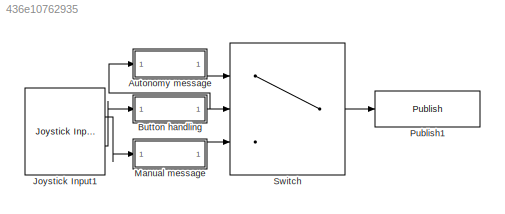
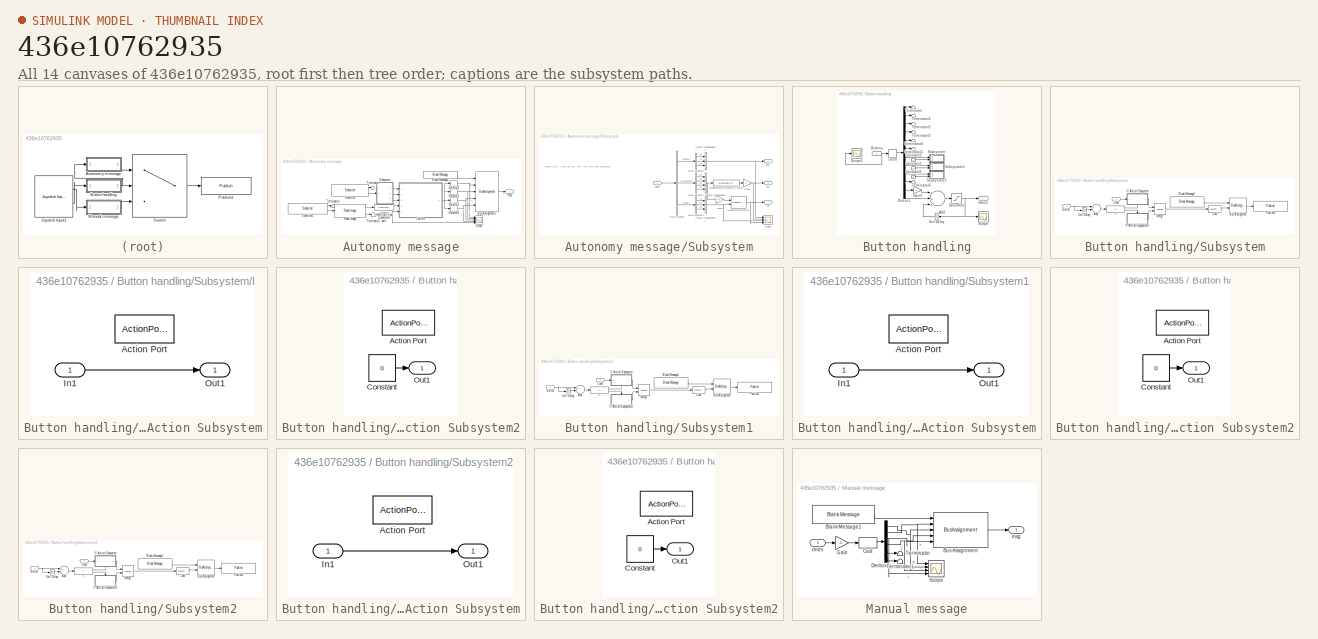
[diagram: thumbnail index - all 14 canvases of the model, root first then tree order]
MODEL slx_436e10762935
KIND model
CONFIG AbsTol = 10
CONFIG EnableMultiTasking = off
CONFIG FixedStep = 0.2
CONFIG MaxStep = 0.5
CONFIG MinStep = 0.3
CONFIG RelTol = 10
CONFIG SampleTimeConstraint = Unconstrained
CONFIG Solver = FixedStepAuto
CONFIG SolverName = FixedStepAuto
CONFIG StartTime = 0.0
CONFIG StopTime = 100
WORKSPACE source: MAT-file member
WORKSPACE SL_ROS_VariableLengthArrays_MaxSizes: struct (value not decoded)
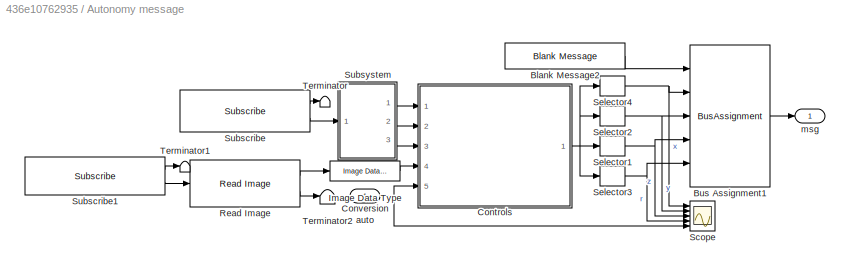
BLOCK [SubSystem] Autonomy message
  Ports = [1, 1]
  RequestExecContextInheritance = off
BLOCK [Reference] Autonomy message/Blank Message2  REF=robotlib/Blank Message
  Ports = [0, 1]
  SourceBlock = robotlib/Blank Message
  SourceLibraryInfo = This block requires Robotics System Toolbox
  SourceProductBaseCode = RO
  SourceProductName = Robotics System Toolbox
  SourceType = ROS Blank Message
BLOCK [BusAssignment] Autonomy message/Bus Assignment1
  AssignedSignals = Linear.X,Linear.Y,Linear.Z,Angular.Z
  Ports = [5, 1]
BLOCK [ModelReference] Autonomy message/Controls
  ModelNameDialog = GNC_exp.slx
  ModelReferenceVersion = 1.454
  Ports = [5, 1]
BLOCK [Reference] Autonomy message/Image Data Type Conversion  REF=visionconversions/Image Data Type
Conversion
  Ports = [1, 1]
  SourceBlock = visionconversions/Image Data Type\nConversion
  SourceProductBaseCode = VP
  SourceProductName = Computer Vision System Toolbox
  SourceType = Image Data Type Conversion
BLOCK [Reference] Autonomy message/Read Image  REF=robotlib/Read Image
  Ports = [1, 2]
  SourceBlock = robotlib/Read Image
  SourceLibraryInfo = This block requires Robotics System Toolbox
  SourceProductBaseCode = RO
  SourceProductName = Robotics System Toolbox
  SourceType = robotics.slros.internal.block.ReadImage
BLOCK [Scope] Autonomy message/Scope
  Floating = off
  NumInputPorts = 5
  Ports = [5]
  ScopeSpecificationString = Simulink.scopes.TimeScopeBlockCfg('CurrentConfiguration', extmgr.ConfigurationSet(extmgr.Configuration('Core','General UI',true),extmgr.Configuration('Core','Source UI',true),extmgr.Configuration('Sources','WiredSimulink',true,'DataLoggingVariableName','ScopeData1'),extmgr.Configuration('Visuals','Time Domain',true,'SerializedDisplays',{struct('MinYLimReal','-0.4633','MaxYLimReal','0.30885','YLabe...<+1590ch>
BLOCK [Selector] Autonomy message/Selector1
  IndexOptions = Index vector (dialog)
  Indices = 3
  InputPortWidth = 4
  OutputSizes = 1
  Ports = [1, 1]
BLOCK [Selector] Autonomy message/Selector2
  IndexOptions = Index vector (dialog)
  Indices = 2
  InputPortWidth = 4
  OutputSizes = 1
  Ports = [1, 1]
BLOCK [Selector] Autonomy message/Selector3
  IndexOptions = Index vector (dialog)
  Indices = 4
  InputPortWidth = 4
  OutputSizes = 1
  Ports = [1, 1]
BLOCK [Selector] Autonomy message/Selector4
  IndexOptions = Index vector (dialog)
  Indices = 1
  InputPortWidth = 4
  OutputSizes = 1
  Ports = [1, 1]
BLOCK [Reference] Autonomy message/Subscribe  REF=robotlib/Subscribe
  Ports = [0, 2]
  SourceBlock = robotlib/Subscribe
  SourceLibraryInfo = This block requires Robotics System Toolbox
  SourceProductBaseCode = RO
  SourceProductName = Robotics System Toolbox
  SourceType = ROS Subscribe
BLOCK [Reference] Autonomy message/Subscribe1  REF=robotlib/Subscribe
  Ports = [0, 2]
  SourceBlock = robotlib/Subscribe
  SourceLibraryInfo = This block requires Robotics System Toolbox
  SourceProductBaseCode = RO
  SourceProductName = Robotics System Toolbox
  SourceType = ROS Subscribe
BLOCK [SubSystem] Autonomy message/Subsystem
  Ports = [1, 3]
  RequestExecContextInheritance = off
BLOCK [BusSelector] Autonomy message/Subsystem/Bus Selector
  OutputAsBus = off
  OutputSignals = Pose.Pose.Position,Pose.Pose.Orientation,Twist.Twist.Linear
  Ports = [1, 3]
BLOCK [BusSelector] Autonomy message/Subsystem/Bus Selector1
  OutputAsBus = off
  OutputSignals = W,X,Y,Z
  Ports = [1, 4]
BLOCK [BusSelector] Autonomy message/Subsystem/Bus Selector2
  OutputAsBus = off
  OutputSignals = X,Y,Z
  Ports = [1, 3]
BLOCK [BusSelector] Autonomy message/Subsystem/Bus Selector3
  OutputAsBus = off
  OutputSignals = X,Y,Z
  Ports = [1, 3]
BLOCK [Gain] Autonomy message/Subsystem/Gain
  Gain = [-1,1,1,1]
  OutDataTypeStr = Inherit: Inherit via internal rule
  ParamDataTypeStr = Inherit: Inherit via internal rule
  SaturateOnIntegerOverflow = off
BLOCK [Gain] Autonomy message/Subsystem/Gain1
  OutDataTypeStr = Inherit: Inherit via internal rule
  ParamDataTypeStr = Inherit: Inherit via internal rule
  SaturateOnIntegerOverflow = off
BLOCK [Reference] Autonomy message/Subsystem/Quaternion Rotation  REF=aerolibutil/Quaternion
Rotation
  Ports = [2, 1]
  SourceBlock = aerolibutil/Quaternion\nRotation
  SourceProductBaseCode = AE
  SourceProductName = Aerospace Blockset
  SourceType = Quaternion Rotation
BLOCK [Reference] Autonomy message/Subsystem/Quaternions to Rotation Angles  REF=sharedtransform/Quaternions to Rotation Angles
  AttributesFormatString = Rotation Order: %<rotationOrder>
  Ports = [1, 1]
  SourceBlock = sharedtransform/Quaternions to Rotation Angles
  SourceProductBaseCode = AE
  SourceProductName = Aerospace Blockset
  SourceType = Quat2Ang
BLOCK [Scope] Autonomy message/Subsystem/Scope
  Commented = on
  Floating = off
  NumInputPorts = 4
  Ports = [4]
  ScopeSpecificationString = Simulink.scopes.TimeScopeBlockCfg('CurrentConfiguration', extmgr.ConfigurationSet(extmgr.Configuration('Core','General UI',true),extmgr.Configuration('Core','Source UI',true),extmgr.Configuration('Sources','WiredSimulink',true,'DataLoggingVariableName','ScopeData3'),extmgr.Configuration('Visuals','Time Domain',true,'SerializedDisplays',{struct('MinYLimReal','-1.06111','MaxYLimReal','0.72698','YLab...<+1924ch>
BLOCK [Concatenate] Autonomy message/Subsystem/Vector Concatenate
  NumInputs = 4
  Ports = [4, 1]
BLOCK [Concatenate] Autonomy message/Subsystem/Vector Concatenate1
  NumInputs = 3
  Ports = [3, 1]
BLOCK [Concatenate] Autonomy message/Subsystem/Vector Concatenate2
  NumInputs = 3
  Ports = [3, 1]
BLOCK [Outport] Autonomy message/Subsystem/eul
  IconDisplay = Port number
  Port = 3
BLOCK [Inport] Autonomy message/Subsystem/odom
  IconDisplay = Port number
BLOCK [Outport] Autonomy message/Subsystem/pos
  IconDisplay = Port number
  Port = 2
BLOCK [Outport] Autonomy message/Subsystem/vel
  IconDisplay = Port number
BLOCK [Terminator] Autonomy message/Terminator
BLOCK [Terminator] Autonomy message/Terminator1
BLOCK [Terminator] Autonomy message/Terminator2
BLOCK [Inport] Autonomy message/auto
  IconDisplay = Port number
BLOCK [Outport] Autonomy message/msg
  IconDisplay = Port number
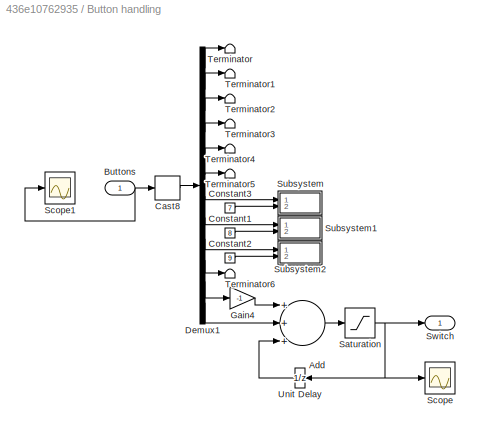
BLOCK [SubSystem] Button handling
  Ports = [1, 1]
  RequestExecContextInheritance = off
BLOCK [Sum] Button handling/Add
  InputSameDT = off
  Inputs = +++
  OutDataTypeStr = Inherit: Inherit via internal rule
  Ports = [3, 1]
  SaturateOnIntegerOverflow = off
BLOCK [Inport] Button handling/Buttons
  IconDisplay = Port number
BLOCK [DataTypeConversion] Button handling/Cast8
  OutDataTypeStr = int32
  RndMeth = Floor
  SaturateOnIntegerOverflow = off
BLOCK [Constant] Button handling/Constant1
  Value = 8
BLOCK [Constant] Button handling/Constant2
  Value = 9
BLOCK [Constant] Button handling/Constant3
  Value = 7
BLOCK [Demux] Button handling/Demux1
  DisplayOption = bar
  Outputs = 12
  Ports = [1, 12]
BLOCK [Gain] Button handling/Gain4
  Gain = -1
  OutDataTypeStr = Inherit: Inherit via internal rule
  ParamDataTypeStr = Inherit: Inherit via internal rule
  SaturateOnIntegerOverflow = off
BLOCK [Saturate] Button handling/Saturation
  InputPortMap = u0
  LowerLimit = 0
  Ports = [1, 1]
  UpperLimit = 1
BLOCK [Scope] Button handling/Scope
  Commented = on
  Floating = off
  NumInputPorts = 1
  Ports = [1]
  ScopeSpecificationString = Simulink.scopes.TimeScopeBlockCfg('CurrentConfiguration', extmgr.ConfigurationSet(extmgr.Configuration('Core','General UI',true),extmgr.Configuration('Core','Source UI',true),extmgr.Configuration('Sources','WiredSimulink',true),extmgr.Configuration('Visuals','Time Domain',true,'SerializedDisplays',{struct('MinYLimReal','-1.00000','MaxYLimReal','1.00000','YLabelReal','','MinYLimMag','0.00000','MaxY...<+1360ch>
BLOCK [Scope] Button handling/Scope1
  Floating = off
  NumInputPorts = 1
  Ports = [1]
  ScopeSpecificationString = Simulink.scopes.TimeScopeBlockCfg('CurrentConfiguration', extmgr.ConfigurationSet(extmgr.Configuration('Core','General UI',true),extmgr.Configuration('Core','Source UI',true),extmgr.Configuration('Sources','WiredSimulink',true,'DataLoggingVariableName','ScopeData1'),extmgr.Configuration('Visuals','Time Domain',true,'SerializedDisplays',{struct('MinYLimReal','-1.00000','MaxYLimReal','1.00000','YLab...<+1556ch>
BLOCK [SubSystem] Button handling/Subsystem
  Ports = [2]
  RequestExecContextInheritance = off
BLOCK [Sum] Button handling/Subsystem/Add
  InputSameDT = off
  Inputs = +-
  OutDataTypeStr = Inherit: Inherit via internal rule
  Ports = [2, 1]
  SaturateOnIntegerOverflow = off
BLOCK [Reference] Button handling/Subsystem/Blank Message1  REF=robotlib/Blank Message
  Ports = [0, 1]
  SourceBlock = robotlib/Blank Message
  SourceLibraryInfo = This block requires Robotics System Toolbox
  SourceProductBaseCode = RO
  SourceProductName = Robotics System Toolbox
  SourceType = ROS Blank Message
BLOCK [BusAssignment] Button handling/Subsystem/Bus Assignment
  AssignedSignals = Data
  Ports = [2, 1]
BLOCK [Inport] Button handling/Subsystem/Button
  IconDisplay = Port number
BLOCK [DataTypeConversion] Button handling/Subsystem/Cast
  OutDataTypeStr = int32
  RndMeth = Floor
  SaturateOnIntegerOverflow = off
BLOCK [Inport] Button handling/Subsystem/Const
  IconDisplay = Port number
  Port = 2
BLOCK [If] Button handling/Subsystem/If
  IfExpression = u1 ==1
  Ports = [1, 2]
BLOCK [SubSystem] Button handling/Subsystem/If Action Subsystem
  Ports = [1, 1, 0, 0, 0, 0, 0, 1]
  RequestExecContextInheritance = off
  TreatAsAtomicUnit = on
BLOCK [ActionPort] Button handling/Subsystem/If Action Subsystem/Action Port
  ActionType = then
BLOCK [Inport] Button handling/Subsystem/If Action Subsystem/In1
  IconDisplay = Port number
BLOCK [Outport] Button handling/Subsystem/If Action Subsystem/Out1
  IconDisplay = Port number
BLOCK [SubSystem] Button handling/Subsystem/If Action Subsystem2
  Ports = [0, 1, 0, 0, 0, 0, 0, 1]
  RequestExecContextInheritance = off
  TreatAsAtomicUnit = on
BLOCK [ActionPort] Button handling/Subsystem/If Action Subsystem2/Action Port
  ActionType = else
BLOCK [Constant] Button handling/Subsystem/If Action Subsystem2/Constant
  Value = 0
BLOCK [Outport] Button handling/Subsystem/If Action Subsystem2/Out1
  IconDisplay = Port number
BLOCK [Merge] Button handling/Subsystem/Merge
  Ports = [2, 1]
BLOCK [Reference] Button handling/Subsystem/Publish1  REF=robotlib/Publish
  Ports = [1]
  SourceBlock = robotlib/Publish
  SourceLibraryInfo = This block requires Robotics System Toolbox
  SourceProductBaseCode = RO
  SourceProductName = Robotics System Toolbox
  SourceType = ROS Publish
BLOCK [UnitDelay] Button handling/Subsystem/Unit Delay
  InputProcessing = Elements as channels (sample based)
  SampleTime = -1
BLOCK [SubSystem] Button handling/Subsystem1
  Ports = [2]
  RequestExecContextInheritance = off
BLOCK [Sum] Button handling/Subsystem1/Add
  InputSameDT = off
  Inputs = +-
  OutDataTypeStr = Inherit: Inherit via internal rule
  Ports = [2, 1]
  SaturateOnIntegerOverflow = off
BLOCK [Reference] Button handling/Subsystem1/Blank Message1  REF=robotlib/Blank Message
  Ports = [0, 1]
  SourceBlock = robotlib/Blank Message
  SourceLibraryInfo = This block requires Robotics System Toolbox
  SourceProductBaseCode = RO
  SourceProductName = Robotics System Toolbox
  SourceType = ROS Blank Message
BLOCK [BusAssignment] Button handling/Subsystem1/Bus Assignment
  AssignedSignals = Data
  Ports = [2, 1]
BLOCK [Inport] Button handling/Subsystem1/Button
  IconDisplay = Port number
BLOCK [DataTypeConversion] Button handling/Subsystem1/Cast
  OutDataTypeStr = int32
  RndMeth = Floor
  SaturateOnIntegerOverflow = off
BLOCK [Inport] Button handling/Subsystem1/Const
  IconDisplay = Port number
  Port = 2
BLOCK [If] Button handling/Subsystem1/If
  IfExpression = u1 ==1
  Ports = [1, 2]
BLOCK [SubSystem] Button handling/Subsystem1/If Action Subsystem
  Ports = [1, 1, 0, 0, 0, 0, 0, 1]
  RequestExecContextInheritance = off
  TreatAsAtomicUnit = on
BLOCK [ActionPort] Button handling/Subsystem1/If Action Subsystem/Action Port
  ActionType = then
BLOCK [Inport] Button handling/Subsystem1/If Action Subsystem/In1
  IconDisplay = Port number
BLOCK [Outport] Button handling/Subsystem1/If Action Subsystem/Out1
  IconDisplay = Port number
BLOCK [SubSystem] Button handling/Subsystem1/If Action Subsystem2
  Ports = [0, 1, 0, 0, 0, 0, 0, 1]
  RequestExecContextInheritance = off
  TreatAsAtomicUnit = on
BLOCK [ActionPort] Button handling/Subsystem1/If Action Subsystem2/Action Port
  ActionType = else
BLOCK [Constant] Button handling/Subsystem1/If Action Subsystem2/Constant
  Value = 0
BLOCK [Outport] Button handling/Subsystem1/If Action Subsystem2/Out1
  IconDisplay = Port number
BLOCK [Merge] Button handling/Subsystem1/Merge
  Ports = [2, 1]
BLOCK [Reference] Button handling/Subsystem1/Publish1  REF=robotlib/Publish
  Ports = [1]
  SourceBlock = robotlib/Publish
  SourceLibraryInfo = This block requires Robotics System Toolbox
  SourceProductBaseCode = RO
  SourceProductName = Robotics System Toolbox
  SourceType = ROS Publish
BLOCK [UnitDelay] Button handling/Subsystem1/Unit Delay
  InputProcessing = Elements as channels (sample based)
  SampleTime = -1
BLOCK [SubSystem] Button handling/Subsystem2
  Ports = [2]
  RequestExecContextInheritance = off
BLOCK [Sum] Button handling/Subsystem2/Add
  InputSameDT = off
  Inputs = +-
  OutDataTypeStr = Inherit: Inherit via internal rule
  Ports = [2, 1]
  SaturateOnIntegerOverflow = off
BLOCK [Reference] Button handling/Subsystem2/Blank Message1  REF=robotlib/Blank Message
  Ports = [0, 1]
  SourceBlock = robotlib/Blank Message
  SourceLibraryInfo = This block requires Robotics System Toolbox
  SourceProductBaseCode = RO
  SourceProductName = Robotics System Toolbox
  SourceType = ROS Blank Message
BLOCK [BusAssignment] Button handling/Subsystem2/Bus Assignment
  AssignedSignals = Data
  Ports = [2, 1]
BLOCK [Inport] Button handling/Subsystem2/Button
  IconDisplay = Port number
BLOCK [DataTypeConversion] Button handling/Subsystem2/Cast
  OutDataTypeStr = int32
  RndMeth = Floor
  SaturateOnIntegerOverflow = off
BLOCK [Inport] Button handling/Subsystem2/Const
  IconDisplay = Port number
  Port = 2
BLOCK [If] Button handling/Subsystem2/If
  IfExpression = u1 ==1
  Ports = [1, 2]
BLOCK [SubSystem] Button handling/Subsystem2/If Action Subsystem
  Ports = [1, 1, 0, 0, 0, 0, 0, 1]
  RequestExecContextInheritance = off
  TreatAsAtomicUnit = on
BLOCK [ActionPort] Button handling/Subsystem2/If Action Subsystem/Action Port
  ActionType = then
BLOCK [Inport] Button handling/Subsystem2/If Action Subsystem/In1
  IconDisplay = Port number
BLOCK [Outport] Button handling/Subsystem2/If Action Subsystem/Out1
  IconDisplay = Port number
BLOCK [SubSystem] Button handling/Subsystem2/If Action Subsystem2
  Ports = [0, 1, 0, 0, 0, 0, 0, 1]
  RequestExecContextInheritance = off
  TreatAsAtomicUnit = on
BLOCK [ActionPort] Button handling/Subsystem2/If Action Subsystem2/Action Port
  ActionType = else
BLOCK [Constant] Button handling/Subsystem2/If Action Subsystem2/Constant
  Value = 0
BLOCK [Outport] Button handling/Subsystem2/If Action Subsystem2/Out1
  IconDisplay = Port number
BLOCK [Merge] Button handling/Subsystem2/Merge
  Ports = [2, 1]
BLOCK [Reference] Button handling/Subsystem2/Publish1  REF=robotlib/Publish
  Ports = [1]
  SourceBlock = robotlib/Publish
  SourceLibraryInfo = This block requires Robotics System Toolbox
  SourceProductBaseCode = RO
  SourceProductName = Robotics System Toolbox
  SourceType = ROS Publish
BLOCK [UnitDelay] Button handling/Subsystem2/Unit Delay
  InputProcessing = Elements as channels (sample based)
  SampleTime = -1
BLOCK [Outport] Button handling/Switch
  IconDisplay = Port number
BLOCK [Terminator] Button handling/Terminator
BLOCK [Terminator] Button handling/Terminator1
BLOCK [Terminator] Button handling/Terminator2
BLOCK [Terminator] Button handling/Terminator3
BLOCK [Terminator] Button handling/Terminator4
BLOCK [Terminator] Button handling/Terminator5
BLOCK [Terminator] Button handling/Terminator6
BLOCK [UnitDelay] Button handling/Unit Delay
  InputProcessing = Elements as channels (sample based)
  SampleTime = -1
BLOCK [Reference] Joystick Input1  REF=vrlib/Joystick Input
  Ports = [0, 2]
  SourceBlock = vrlib/Joystick Input
  SourceProductBaseCode = VR
  SourceProductName = Simulink 3D Animation
  SourceType = Joystick Input
BLOCK [SubSystem] Manual message
  Ports = [1, 1]
  RequestExecContextInheritance = off
BLOCK [Reference] Manual message/Blank Message1  REF=robotlib/Blank Message
  Ports = [0, 1]
  SourceBlock = robotlib/Blank Message
  SourceLibraryInfo = This block requires Robotics System Toolbox
  SourceProductBaseCode = RO
  SourceProductName = Robotics System Toolbox
  SourceType = ROS Blank Message
BLOCK [BusAssignment] Manual message/Bus Assignment
  AssignedSignals = Linear.X,Linear.Y,Linear.Z,Angular.Z
  Ports = [5, 1]
BLOCK [DataTypeConversion] Manual message/Cast
  OutDataTypeStr = double
  RndMeth = Floor
  SaturateOnIntegerOverflow = off
BLOCK [Demux] Manual message/Demux
  DisplayOption = bar
  Outputs = 6
  Ports = [1, 6]
BLOCK [Gain] Manual message/Gain
  Gain = -1
  OutDataTypeStr = Inherit: Inherit via internal rule
  ParamDataTypeStr = Inherit: Inherit via internal rule
  SaturateOnIntegerOverflow = off
BLOCK [Scope] Manual message/Scope
  Floating = off
  NumInputPorts = 4
  Ports = [4]
  ScopeSpecificationString = Simulink.scopes.TimeScopeBlockCfg('CurrentConfiguration', extmgr.ConfigurationSet(extmgr.Configuration('Core','General UI',true),extmgr.Configuration('Core','Source UI',true),extmgr.Configuration('Sources','WiredSimulink',true,'DataLoggingVariableName','ScopeData1'),extmgr.Configuration('Visuals','Time Domain',true,'SerializedDisplays',{struct('MinYLimReal','-1.00000','MaxYLimReal','1.00000','YLab...<+1451ch>
BLOCK [Terminator] Manual message/Terminator
BLOCK [Terminator] Manual message/Terminator1
BLOCK [Inport] Manual message/cmds
  IconDisplay = Port number
BLOCK [Outport] Manual message/msg
  IconDisplay = Port number
BLOCK [Reference] Publish1  REF=robotlib/Publish
  Ports = [1]
  SourceBlock = robotlib/Publish
  SourceLibraryInfo = This block requires Robotics System Toolbox
  SourceProductBaseCode = RO
  SourceProductName = Robotics System Toolbox
  SourceType = ROS Publish
BLOCK [Switch] Switch
  Criteria = u2 > Threshold
  InputSameDT = off
  SaturateOnIntegerOverflow = off
ANNOTATION Autonomy message/Subsystem: Bebop COS: Front left up -> eul = roll pitch yaw accordingly
LINE Autonomy message/Blank Message2:1 -> Autonomy message/Bus Assignment1:1
LINE Autonomy message/Bus Assignment1:1 -> Autonomy message/msg:1
NET Autonomy message/Controls:1 -> Autonomy message/Selector1:1, Autonomy message/Selector2:1, Autonomy message/Selector3:1, Autonomy message/Selector4:1
LINE Autonomy message/Image Data Type Conversion:1 -> Autonomy message/Controls:4
LINE Autonomy message/Read Image:1 -> Autonomy message/Image Data Type Conversion:1
LINE Autonomy message/Read Image:2 -> Autonomy message/Terminator2:1
NET Autonomy message/Selector1:1 -> Autonomy message/Bus Assignment1:4, Autonomy message/Scope:3
NET Autonomy message/Selector2:1 -> Autonomy message/Bus Assignment1:3, Autonomy message/Scope:2
NET Autonomy message/Selector3:1 -> Autonomy message/Bus Assignment1:5, Autonomy message/Scope:4
NET Autonomy message/Selector4:1 -> Autonomy message/Bus Assignment1:2, Autonomy message/Scope:1
LINE Autonomy message/Subscribe1:1 -> Autonomy message/Terminator1:1
LINE Autonomy message/Subscribe1:2 -> Autonomy message/Read Image:1
LINE Autonomy message/Subscribe:1 -> Autonomy message/Terminator:1
LINE Autonomy message/Subscribe:2 -> Autonomy message/Subsystem:1
LINE Autonomy message/Subsystem/Bus Selector1:1 -> Autonomy message/Subsystem/Vector Concatenate:1
LINE Autonomy message/Subsystem/Bus Selector1:2 -> Autonomy message/Subsystem/Vector Concatenate:2
LINE Autonomy message/Subsystem/Bus Selector1:3 -> Autonomy message/Subsystem/Vector Concatenate:3
LINE Autonomy message/Subsystem/Bus Selector1:4 -> Autonomy message/Subsystem/Vector Concatenate:4
LINE Autonomy message/Subsystem/Bus Selector2:1 -> Autonomy message/Subsystem/Vector Concatenate1:1
LINE Autonomy message/Subsystem/Bus Selector2:2 -> Autonomy message/Subsystem/Vector Concatenate1:2
LINE Autonomy message/Subsystem/Bus Selector2:3 -> Autonomy message/Subsystem/Vector Concatenate1:3
LINE Autonomy message/Subsystem/Bus Selector3:1 -> Autonomy message/Subsystem/Vector Concatenate2:1
LINE Autonomy message/Subsystem/Bus Selector3:2 -> Autonomy message/Subsystem/Vector Concatenate2:2
LINE Autonomy message/Subsystem/Bus Selector3:3 -> Autonomy message/Subsystem/Vector Concatenate2:3
LINE Autonomy message/Subsystem/Bus Selector:1 -> Autonomy message/Subsystem/Bus Selector2:1
LINE Autonomy message/Subsystem/Bus Selector:2 -> Autonomy message/Subsystem/Bus Selector1:1
LINE Autonomy message/Subsystem/Bus Selector:3 -> Autonomy message/Subsystem/Bus Selector3:1
NET Autonomy message/Subsystem/Gain1:1 -> Autonomy message/Subsystem/Scope:2, Autonomy message/Subsystem/eul:1
LINE Autonomy message/Subsystem/Gain:1 -> Autonomy message/Subsystem/Quaternion Rotation:1
NET Autonomy message/Subsystem/Quaternion Rotation:1 -> Autonomy message/Subsystem/Scope:4, Autonomy message/Subsystem/vel:1
LINE Autonomy message/Subsystem/Quaternions to Rotation Angles:1 -> Autonomy message/Subsystem/Gain1:1
NET Autonomy message/Subsystem/Vector Concatenate1:1 -> Autonomy message/Subsystem/Scope:1, Autonomy message/Subsystem/pos:1
NET Autonomy message/Subsystem/Vector Concatenate2:1 -> Autonomy message/Subsystem/Quaternion Rotation:2, Autonomy message/Subsystem/Scope:3
NET Autonomy message/Subsystem/Vector Concatenate:1 -> Autonomy message/Subsystem/Gain:1, Autonomy message/Subsystem/Quaternions to Rotation Angles:1
LINE Autonomy message/Subsystem/odom:1 -> Autonomy message/Subsystem/Bus Selector:1
LINE Autonomy message/Subsystem:1 -> Autonomy message/Controls:1
LINE Autonomy message/Subsystem:2 -> Autonomy message/Controls:2
LINE Autonomy message/Subsystem:3 -> Autonomy message/Controls:3
NET Autonomy message/auto:1 -> Autonomy message/Controls:5, Autonomy message/Scope:5
LINE Autonomy message:1 -> Switch:1
LINE Button handling/Add:1 -> Button handling/Saturation:1
NET Button handling/Buttons:1 -> Button handling/Cast8:1, Button handling/Scope1:1
LINE Button handling/Cast8:1 -> Button handling/Demux1:1
LINE Button handling/Constant1:1 -> Button handling/Subsystem1:2
LINE Button handling/Constant2:1 -> Button handling/Subsystem2:2
LINE Button handling/Constant3:1 -> Button handling/Subsystem:2
LINE Button handling/Demux1:1 -> Button handling/Terminator:1
LINE Button handling/Demux1:10 -> Button handling/Terminator6:1
LINE Button handling/Demux1:11 -> Button handling/Gain4:1
LINE Button handling/Demux1:12 -> Button handling/Add:2
LINE Button handling/Demux1:2 -> Button handling/Terminator1:1
LINE Button handling/Demux1:3 -> Button handling/Terminator2:1
LINE Button handling/Demux1:4 -> Button handling/Terminator3:1
LINE Button handling/Demux1:5 -> Button handling/Terminator4:1
LINE Button handling/Demux1:6 -> Button handling/Terminator5:1
LINE Button handling/Demux1:7 -> Button handling/Subsystem:1
LINE Button handling/Demux1:8 -> Button handling/Subsystem1:1
LINE Button handling/Demux1:9 -> Button handling/Subsystem2:1
LINE Button handling/Gain4:1 -> Button handling/Add:1
NET Button handling/Saturation:1 -> Button handling/Scope:1, Button handling/Switch:1, Button handling/Unit Delay:1
LINE Button handling/Subsystem/Add:1 -> Button handling/Subsystem/If:1
LINE Button handling/Subsystem/Blank Message1:1 -> Button handling/Subsystem/Bus Assignment:1
LINE Button handling/Subsystem/Bus Assignment:1 -> Button handling/Subsystem/Publish1:1
NET Button handling/Subsystem/Button:1 -> Button handling/Subsystem/Add:1, Button handling/Subsystem/Unit Delay:1
LINE Button handling/Subsystem/Cast:1 -> Button handling/Subsystem/Bus Assignment:2
LINE Button handling/Subsystem/Const:1 -> Button handling/Subsystem/If Action Subsystem:1
LINE Button handling/Subsystem/If Action Subsystem/In1:1 -> Button handling/Subsystem/If Action Subsystem/Out1:1
LINE Button handling/Subsystem/If Action Subsystem2/Constant:1 -> Button handling/Subsystem/If Action Subsystem2/Out1:1
LINE Button handling/Subsystem/If Action Subsystem2:1 -> Button handling/Subsystem/Merge:2
LINE Button handling/Subsystem/If Action Subsystem:1 -> Button handling/Subsystem/Merge:1
LINE Button handling/Subsystem/If:1 -> Button handling/Subsystem/If Action Subsystem:ifaction
LINE Button handling/Subsystem/If:2 -> Button handling/Subsystem/If Action Subsystem2:ifaction
LINE Button handling/Subsystem/Merge:1 -> Button handling/Subsystem/Cast:1
LINE Button handling/Subsystem/Unit Delay:1 -> Button handling/Subsystem/Add:2
LINE Button handling/Subsystem1/Add:1 -> Button handling/Subsystem1/If:1
LINE Button handling/Subsystem1/Blank Message1:1 -> Button handling/Subsystem1/Bus Assignment:1
LINE Button handling/Subsystem1/Bus Assignment:1 -> Button handling/Subsystem1/Publish1:1
NET Button handling/Subsystem1/Button:1 -> Button handling/Subsystem1/Add:1, Button handling/Subsystem1/Unit Delay:1
LINE Button handling/Subsystem1/Cast:1 -> Button handling/Subsystem1/Bus Assignment:2
LINE Button handling/Subsystem1/Const:1 -> Button handling/Subsystem1/If Action Subsystem:1
LINE Button handling/Subsystem1/If Action Subsystem/In1:1 -> Button handling/Subsystem1/If Action Subsystem/Out1:1
LINE Button handling/Subsystem1/If Action Subsystem2/Constant:1 -> Button handling/Subsystem1/If Action Subsystem2/Out1:1
LINE Button handling/Subsystem1/If Action Subsystem2:1 -> Button handling/Subsystem1/Merge:2
LINE Button handling/Subsystem1/If Action Subsystem:1 -> Button handling/Subsystem1/Merge:1
LINE Button handling/Subsystem1/If:1 -> Button handling/Subsystem1/If Action Subsystem:ifaction
LINE Button handling/Subsystem1/If:2 -> Button handling/Subsystem1/If Action Subsystem2:ifaction
LINE Button handling/Subsystem1/Merge:1 -> Button handling/Subsystem1/Cast:1
LINE Button handling/Subsystem1/Unit Delay:1 -> Button handling/Subsystem1/Add:2
LINE Button handling/Subsystem2/Add:1 -> Button handling/Subsystem2/If:1
LINE Button handling/Subsystem2/Blank Message1:1 -> Button handling/Subsystem2/Bus Assignment:1
LINE Button handling/Subsystem2/Bus Assignment:1 -> Button handling/Subsystem2/Publish1:1
NET Button handling/Subsystem2/Button:1 -> Button handling/Subsystem2/Add:1, Button handling/Subsystem2/Unit Delay:1
LINE Button handling/Subsystem2/Cast:1 -> Button handling/Subsystem2/Bus Assignment:2
LINE Button handling/Subsystem2/Const:1 -> Button handling/Subsystem2/If Action Subsystem:1
LINE Button handling/Subsystem2/If Action Subsystem/In1:1 -> Button handling/Subsystem2/If Action Subsystem/Out1:1
LINE Button handling/Subsystem2/If Action Subsystem2/Constant:1 -> Button handling/Subsystem2/If Action Subsystem2/Out1:1
LINE Button handling/Subsystem2/If Action Subsystem2:1 -> Button handling/Subsystem2/Merge:2
LINE Button handling/Subsystem2/If Action Subsystem:1 -> Button handling/Subsystem2/Merge:1
LINE Button handling/Subsystem2/If:1 -> Button handling/Subsystem2/If Action Subsystem:ifaction
LINE Button handling/Subsystem2/If:2 -> Button handling/Subsystem2/If Action Subsystem2:ifaction
LINE Button handling/Subsystem2/Merge:1 -> Button handling/Subsystem2/Cast:1
LINE Button handling/Subsystem2/Unit Delay:1 -> Button handling/Subsystem2/Add:2
LINE Button handling/Unit Delay:1 -> Button handling/Add:3
NET Button handling:1 -> Autonomy message:1, Switch:2
LINE Joystick Input1:1 -> Manual message:1
LINE Joystick Input1:2 -> Button handling:1
LINE Manual message/Blank Message1:1 -> Manual message/Bus Assignment:1
LINE Manual message/Bus Assignment:1 -> Manual message/msg:1
LINE Manual message/Cast:1 -> Manual message/Demux:1
NET Manual message/Demux:1 -> Manual message/Bus Assignment:3, Manual message/Scope:2
NET Manual message/Demux:2 -> Manual message/Bus Assignment:2, Manual message/Scope:1
NET Manual message/Demux:3 -> Manual message/Bus Assignment:5, Manual message/Scope:4
NET Manual message/Demux:4 -> Manual message/Bus Assignment:4, Manual message/Scope:3
LINE Manual message/Demux:5 -> Manual message/Terminator:1
LINE Manual message/Demux:6 -> Manual message/Terminator1:1
LINE Manual message/Gain:1 -> Manual message/Cast:1
LINE Manual message/cmds:1 -> Manual message/Gain:1
LINE Manual message:1 -> Switch:3
LINE Switch:1 -> Publish1:1
note: NET lines group one-source signal fan-out (src -> all destinations, sorted); 1:1 wires keep LINE
